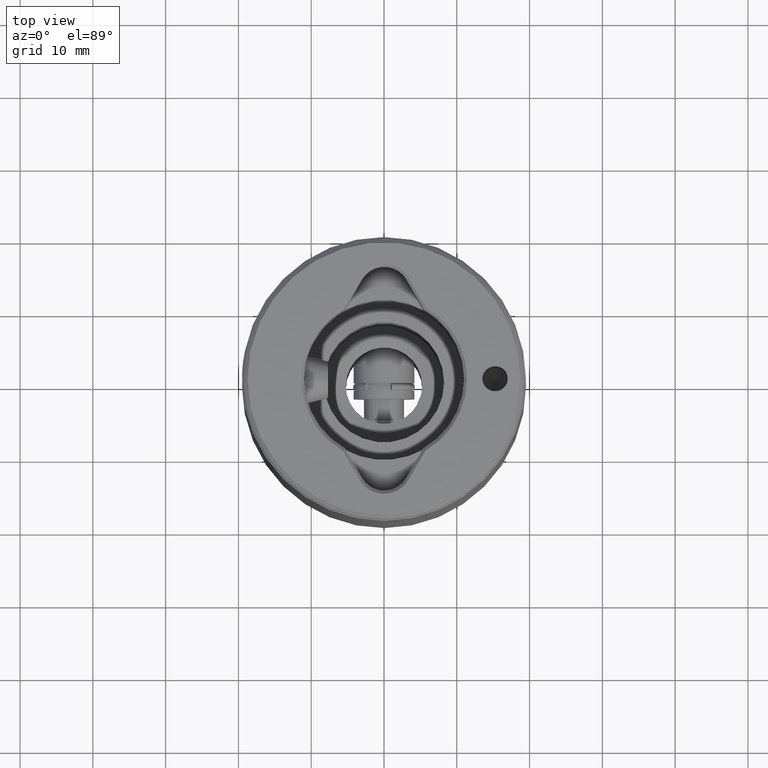
[diagram: clean part render]
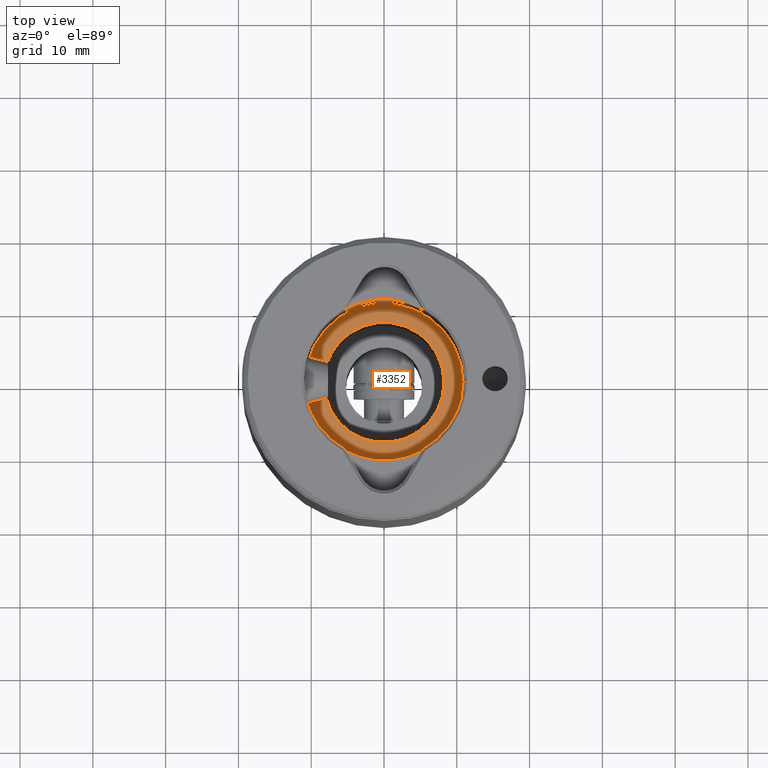
[diagram: same view with one face highlighted and labeled with its STEP entity id]
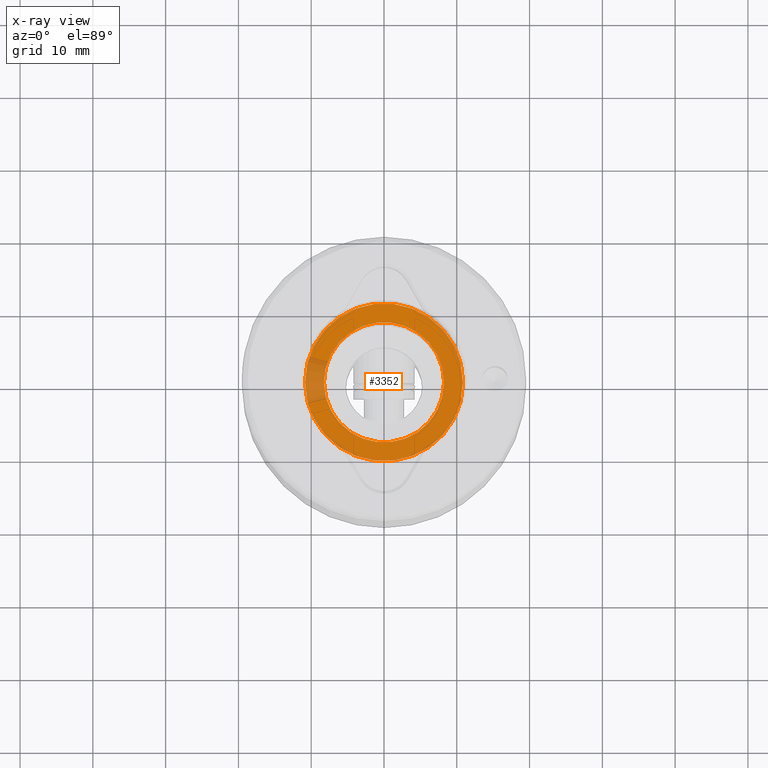
[diagram: x-ray of the same camera — body ghosted, the highlighted face saturated]
A machine part, top view. The second image highlights one B-rep face of the part: STEP entity #3352.
The next image is the same camera in x-ray: the body ghosted, the highlighted face saturated — about 12% of this face is hidden behind the body in this view.
In plain terms, the highlighted planar face has unit normal (0, 0, 1).
Its self-contained STEP definition (entity closure, byte-faithful):
#108 = ORIENTED_EDGE ( 'NONE', *, *, #1260, .F. ) ;
#113 = VERTEX_POINT ( 'NONE', #895 ) ;
#177 = VERTEX_POINT ( 'NONE', #3000 ) ;
#596 = FACE_BOUND ( 'NONE', #3898, .T. ) ;
#624 = DIRECTION ( 'NONE',  ( -1.000000000000000000, 0.0000000000000000000, 0.0000000000000000000 ) ) ;
#879 = EDGE_LOOP ( 'NONE', ( #4556, #1654 ) ) ;
#895 = CARTESIAN_POINT ( 'NONE',  ( -10.85000000000000100, 0.0000000000000000000, 29.00000000000000000 ) ) ;
#945 = EDGE_CURVE ( 'NONE', #177, #113, #1303, .T. ) ;
#951 = DIRECTION ( 'NONE',  ( 0.0000000000000000000, 0.0000000000000000000, -1.000000000000000000 ) ) ;
#1260 = EDGE_CURVE ( 'NONE', #3068, #2501, #1848, .T. ) ;
#1303 = CIRCLE ( 'NONE', #2804, 10.85000000000000100 ) ;
#1453 = CIRCLE ( 'NONE', #1685, 8.249999999999989300 ) ;
#1568 = AXIS2_PLACEMENT_3D ( 'NONE', #3415, #4529, #2328 ) ;
#1653 = CARTESIAN_POINT ( 'NONE',  ( -8.249999999999989300, 0.0000000000000000000, 29.00000000000000000 ) ) ;
#1654 = ORIENTED_EDGE ( 'NONE', *, *, #945, .T. ) ;
#1685 = AXIS2_PLACEMENT_3D ( 'NONE', #3129, #951, #3513 ) ;
#1848 = CIRCLE ( 'NONE', #2904, 8.249999999999989300 ) ;
#1868 = CARTESIAN_POINT ( 'NONE',  ( 0.0000000000000000000, 0.0000000000000000000, 29.00000000000000000 ) ) ;
#1919 = CARTESIAN_POINT ( 'NONE',  ( 8.249999999999989300, 1.010333609296565200E-015, 29.00000000000000000 ) ) ;
#1941 = DIRECTION ( 'NONE',  ( 0.0000000000000000000, 0.0000000000000000000, -1.000000000000000000 ) ) ;
#1950 = PLANE ( 'NONE',  #1568 ) ;
#1962 = ORIENTED_EDGE ( 'NONE', *, *, #2135, .F. ) ;
#2049 = CARTESIAN_POINT ( 'NONE',  ( 0.0000000000000000000, 0.0000000000000000000, 29.00000000000000000 ) ) ;
#2135 = EDGE_CURVE ( 'NONE', #2501, #3068, #1453, .T. ) ;
#2230 = DIRECTION ( 'NONE',  ( -1.000000000000000000, 0.0000000000000000000, 0.0000000000000000000 ) ) ;
#2328 = DIRECTION ( 'NONE',  ( -1.000000000000000000, 0.0000000000000000000, 0.0000000000000000000 ) ) ;
#2501 = VERTEX_POINT ( 'NONE', #1653 ) ;
#2695 = CIRCLE ( 'NONE', #3471, 10.85000000000000100 ) ;
#2793 = DIRECTION ( 'NONE',  ( 0.0000000000000000000, 0.0000000000000000000, -1.000000000000000000 ) ) ;
#2804 = AXIS2_PLACEMENT_3D ( 'NONE', #2049, #2793, #624 ) ;
#2904 = AXIS2_PLACEMENT_3D ( 'NONE', #4139, #1941, #4513 ) ;
#2960 = EDGE_CURVE ( 'NONE', #113, #177, #2695, .T. ) ;
#3000 = CARTESIAN_POINT ( 'NONE',  ( 10.85000000000000100, 1.353234713057825500E-015, 29.00000000000000000 ) ) ;
#3068 = VERTEX_POINT ( 'NONE', #1919 ) ;
#3129 = CARTESIAN_POINT ( 'NONE',  ( 0.0000000000000000000, 0.0000000000000000000, 29.00000000000000000 ) ) ;
#3352 = ADVANCED_FACE ( 'NONE', ( #4118, #596 ), #1950, .T. ) ;
#3415 = CARTESIAN_POINT ( 'NONE',  ( 0.0000000000000000000, 0.0000000000000000000, 29.00000000000000000 ) ) ;
#3471 = AXIS2_PLACEMENT_3D ( 'NONE', #1868, #4438, #2230 ) ;
#3513 = DIRECTION ( 'NONE',  ( -1.000000000000000000, 0.0000000000000000000, 0.0000000000000000000 ) ) ;
#3898 = EDGE_LOOP ( 'NONE', ( #1962, #108 ) ) ;
#4118 = FACE_OUTER_BOUND ( 'NONE', #879, .T. ) ;
#4139 = CARTESIAN_POINT ( 'NONE',  ( 0.0000000000000000000, 0.0000000000000000000, 29.00000000000000000 ) ) ;
#4438 = DIRECTION ( 'NONE',  ( 0.0000000000000000000, 0.0000000000000000000, -1.000000000000000000 ) ) ;
#4513 = DIRECTION ( 'NONE',  ( -1.000000000000000000, 0.0000000000000000000, 0.0000000000000000000 ) ) ;
#4529 = DIRECTION ( 'NONE',  ( 0.0000000000000000000, 0.0000000000000000000, -1.000000000000000000 ) ) ;
#4556 = ORIENTED_EDGE ( 'NONE', *, *, #2960, .T. ) ;